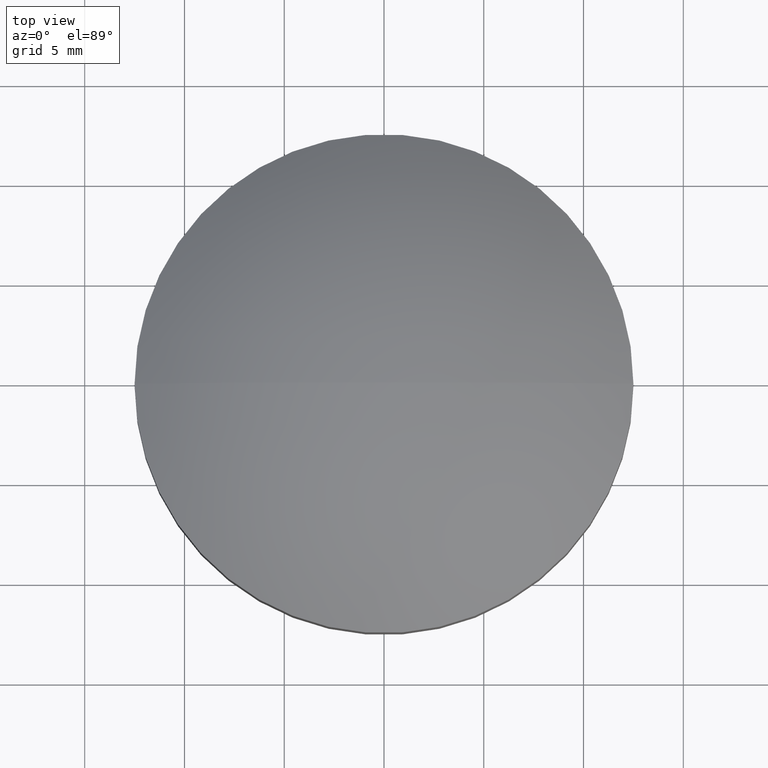
[diagram: clean part render]
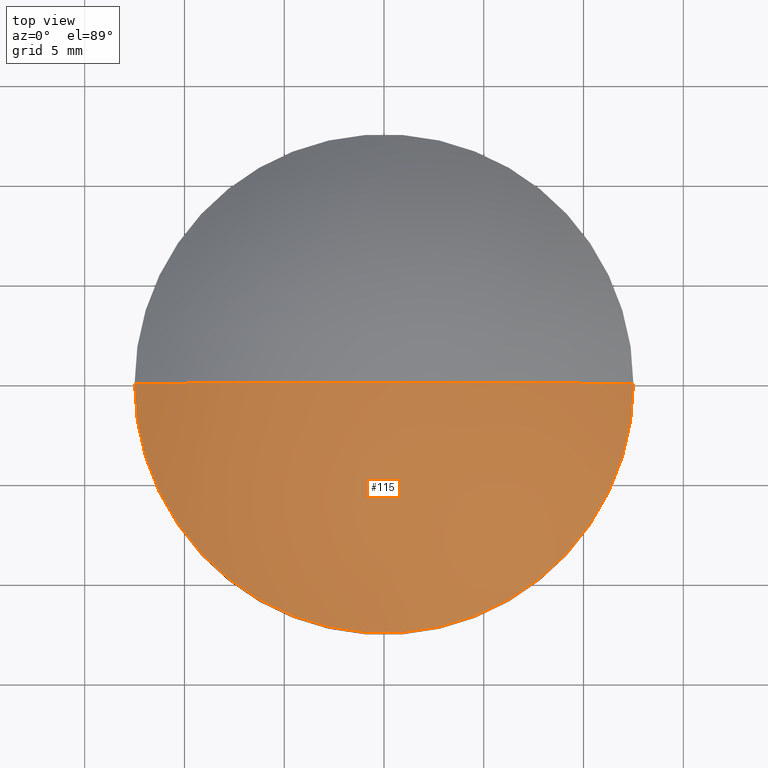
[diagram: same view with one face highlighted and labeled with its STEP entity id]
A machine part, top view. The second image highlights one B-rep face of the part: STEP entity #115.
In plain terms, the highlighted spherical surface has radius 21.5313 mm.
Its self-contained STEP definition (entity closure, byte-faithful):
#6 = CIRCLE ( 'NONE', #128, 21.53125000000000711 ) ;
#10 = AXIS2_PLACEMENT_3D ( 'NONE', #162, #55, #121 ) ;
#16 = VERTEX_POINT ( 'NONE', #179 ) ;
#20 = DIRECTION ( 'NONE',  ( 1.000000000000000000, 0.000000000000000000, 0.000000000000000000 ) ) ;
#23 = CIRCLE ( 'NONE', #139, 12.50000000000000000 ) ;
#27 = EDGE_LOOP ( 'NONE', ( #92, #198, #147 ) ) ;
#55 = DIRECTION ( 'NONE',  ( -1.224646799147353207E-16, -1.000000000000000000, -0.000000000000000000 ) ) ;
#59 = DIRECTION ( 'NONE',  ( 0.000000000000000000, 1.000000000000000000, 0.000000000000000000 ) ) ;
#63 = VERTEX_POINT ( 'NONE', #159 ) ;
#71 = DIRECTION ( 'NONE',  ( -1.000000000000000000, 0.000000000000000000, 0.000000000000000000 ) ) ;
#73 = CARTESIAN_POINT ( 'NONE',  ( 0.000000000000000000, 0.000000000000000000, -11.67125000000001123 ) ) ;
#92 = ORIENTED_EDGE ( 'NONE', *, *, #204, .T. ) ;
#103 = CIRCLE ( 'NONE', #10, 21.53125000000000711 ) ;
#115 = ADVANCED_FACE ( 'NONE', ( #118 ), #163, .T. ) ;
#118 = FACE_OUTER_BOUND ( 'NONE', #27, .T. ) ;
#120 = CARTESIAN_POINT ( 'NONE',  ( 0.000000000000000000, 0.000000000000000000, 5.860000000000000320 ) ) ;
#121 = DIRECTION ( 'NONE',  ( 1.000000000000000000, -1.224646799147353207E-16, 0.000000000000000000 ) ) ;
#124 = CARTESIAN_POINT ( 'NONE',  ( -12.50000000000000000, 0.000000000000000000, 5.860000000000000320 ) ) ;
#128 = AXIS2_PLACEMENT_3D ( 'NONE', #207, #59, #151 ) ;
#136 = EDGE_CURVE ( 'NONE', #145, #63, #6, .T. ) ;
#139 = AXIS2_PLACEMENT_3D ( 'NONE', #120, #181, #20 ) ;
#145 = VERTEX_POINT ( 'NONE', #124 ) ;
#147 = ORIENTED_EDGE ( 'NONE', *, *, #136, .F. ) ;
#151 = DIRECTION ( 'NONE',  ( 0.000000000000000000, 0.000000000000000000, 1.000000000000000000 ) ) ;
#159 = CARTESIAN_POINT ( 'NONE',  ( -1.318408819707072946E-15, 0.000000000000000000, 9.859999999999997655 ) ) ;
#162 = CARTESIAN_POINT ( 'NONE',  ( 0.000000000000000000, 0.000000000000000000, -11.67125000000001123 ) ) ;
#163 = SPHERICAL_SURFACE ( 'NONE', #182, 21.53125000000000711 ) ;
#179 = CARTESIAN_POINT ( 'NONE',  ( 12.50000000000000000, 1.530808498934191127E-15, 5.860000000000000320 ) ) ;
#181 = DIRECTION ( 'NONE',  ( 0.000000000000000000, 0.000000000000000000, 1.000000000000000000 ) ) ;
#182 = AXIS2_PLACEMENT_3D ( 'NONE', #73, #184, #71 ) ;
#184 = DIRECTION ( 'NONE',  ( -0.000000000000000000, -1.000000000000000000, 0.000000000000000000 ) ) ;
#198 = ORIENTED_EDGE ( 'NONE', *, *, #208, .T. ) ;
#204 = EDGE_CURVE ( 'NONE', #145, #16, #23, .T. ) ;
#207 = CARTESIAN_POINT ( 'NONE',  ( 0.000000000000000000, 0.000000000000000000, -11.67125000000001123 ) ) ;
#208 = EDGE_CURVE ( 'NONE', #16, #63, #103, .T. ) ;